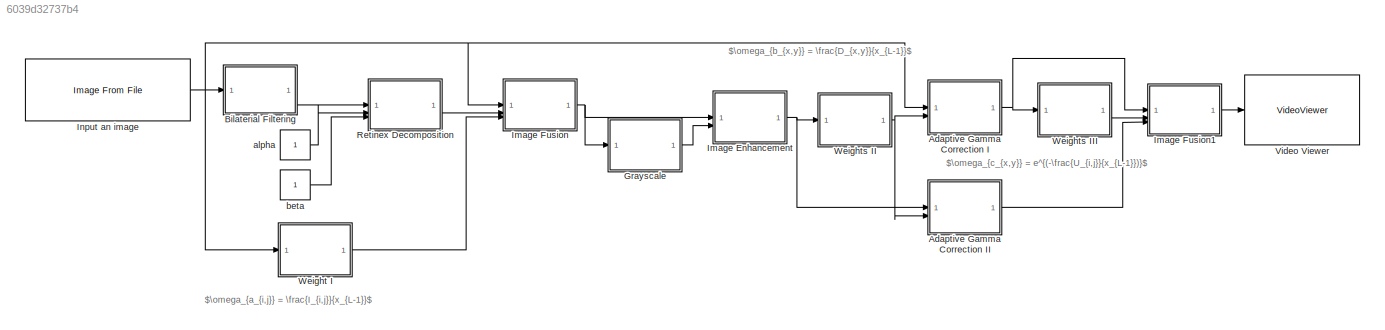
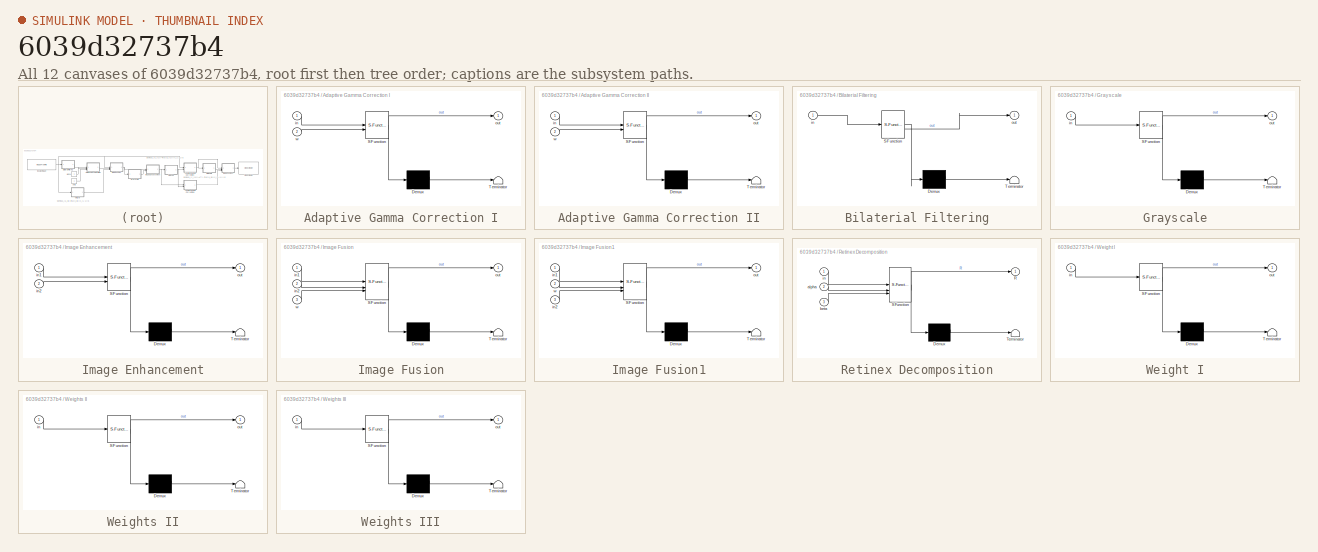
[diagram: thumbnail index - all 12 canvases of the model, root first then tree order]
MODEL slx_6039d32737b4
KIND model
CONFIG AbsTol = auto
CONFIG EnableMultiTasking = off
CONFIG FixedStep = auto
CONFIG MaxStep = auto
CONFIG MinStep = auto
CONFIG RelTol = 1e-3
CONFIG SampleTimeConstraint = Unconstrained
CONFIG SolverName = VariableStepAuto
CONFIG StartTime = 0.0
CONFIG StopTime = 10.0
BLOCK [SubSystem] Adaptive Gamma Correction I
  ErrorFcn = Stateflow.Translate.translate
  LibrarySourceBlock = simulink/User-Defined\nFunctions/MATLAB Function
  PermitHierarchicalResolution = ExplicitOnly
  SFBlockType = MATLAB Function
  TreatAsAtomicUnit = on
BLOCK [Demux] Adaptive Gamma Correction I/ Demux 
  Outputs = 1
BLOCK [S-Function] Adaptive Gamma Correction I/ SFunction 
  EnableBusSupport = off
  FunctionName = sf_sfun
  PortCounts = [2 2]
  SFcnIsStateOwnerBlock = off
  SFunctionDeploymentMode = off
  Tag = Stateflow S-Function 7
BLOCK [Terminator] Adaptive Gamma Correction I/ Terminator 
BLOCK [Inport] Adaptive Gamma Correction I/in
BLOCK [Outport] Adaptive Gamma Correction I/out
BLOCK [Inport] Adaptive Gamma Correction I/w
  Port = 2
BLOCK [SubSystem] Adaptive Gamma Correction II
  ErrorFcn = Stateflow.Translate.translate
  LibrarySourceBlock = simulink/User-Defined\nFunctions/MATLAB Function
  PermitHierarchicalResolution = ExplicitOnly
  SFBlockType = MATLAB Function
  TreatAsAtomicUnit = on
BLOCK [Demux] Adaptive Gamma Correction II/ Demux 
  Outputs = 1
BLOCK [S-Function] Adaptive Gamma Correction II/ SFunction 
  EnableBusSupport = off
  FunctionName = sf_sfun
  PortCounts = [2 2]
  SFcnIsStateOwnerBlock = off
  SFunctionDeploymentMode = off
  Tag = Stateflow S-Function 8
BLOCK [Terminator] Adaptive Gamma Correction II/ Terminator 
BLOCK [Inport] Adaptive Gamma Correction II/in
BLOCK [Outport] Adaptive Gamma Correction II/out
BLOCK [Inport] Adaptive Gamma Correction II/w
  Port = 2
BLOCK [SubSystem] Bilaterial Filtering
  ErrorFcn = Stateflow.Translate.translate
  LibrarySourceBlock = simulink/User-Defined\nFunctions/MATLAB Function
  PermitHierarchicalResolution = ExplicitOnly
  SFBlockType = MATLAB Function
  TreatAsAtomicUnit = on
BLOCK [Demux] Bilaterial Filtering/ Demux 
  Outputs = 1
BLOCK [S-Function] Bilaterial Filtering/ SFunction 
  EnableBusSupport = off
  FunctionName = sf_sfun
  PortCounts = [1 2]
  SFcnIsStateOwnerBlock = off
  SFunctionDeploymentMode = off
  Tag = Stateflow S-Function 1
BLOCK [Terminator] Bilaterial Filtering/ Terminator 
BLOCK [Inport] Bilaterial Filtering/in
BLOCK [Outport] Bilaterial Filtering/out
BLOCK [SubSystem] Grayscale
  ErrorFcn = Stateflow.Translate.translate
  LibrarySourceBlock = simulink/User-Defined\nFunctions/MATLAB Function
  PermitHierarchicalResolution = ExplicitOnly
  SFBlockType = MATLAB Function
  TreatAsAtomicUnit = on
BLOCK [Demux] Grayscale/ Demux 
  Outputs = 1
BLOCK [S-Function] Grayscale/ SFunction 
  EnableBusSupport = off
  FunctionName = sf_sfun
  PortCounts = [1 2]
  SFcnIsStateOwnerBlock = off
  SFunctionDeploymentMode = off
  Tag = Stateflow S-Function 6
BLOCK [Terminator] Grayscale/ Terminator 
BLOCK [Inport] Grayscale/in
BLOCK [Outport] Grayscale/out
BLOCK [SubSystem] Image Enhancement
  ErrorFcn = Stateflow.Translate.translate
  LibrarySourceBlock = simulink/User-Defined\nFunctions/MATLAB Function
  PermitHierarchicalResolution = ExplicitOnly
  SFBlockType = MATLAB Function
  TreatAsAtomicUnit = on
BLOCK [Demux] Image Enhancement/ Demux 
  Outputs = 1
BLOCK [S-Function] Image Enhancement/ SFunction 
  EnableBusSupport = off
  FunctionName = sf_sfun
  PortCounts = [2 2]
  SFcnIsStateOwnerBlock = off
  SFunctionDeploymentMode = off
  Tag = Stateflow S-Function 5
BLOCK [Terminator] Image Enhancement/ Terminator 
BLOCK [Inport] Image Enhancement/in1
BLOCK [Inport] Image Enhancement/in2
  Port = 2
BLOCK [Outport] Image Enhancement/out
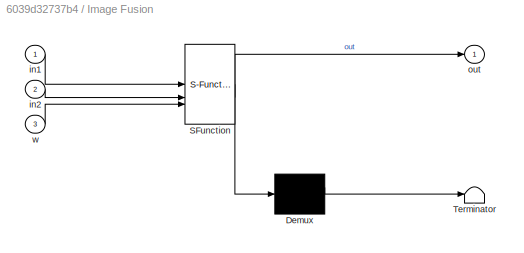
BLOCK [SubSystem] Image Fusion
  ErrorFcn = Stateflow.Translate.translate
  LibrarySourceBlock = simulink/User-Defined\nFunctions/MATLAB Function
  PermitHierarchicalResolution = ExplicitOnly
  SFBlockType = MATLAB Function
  TreatAsAtomicUnit = on
BLOCK [Demux] Image Fusion/ Demux 
  Outputs = 1
BLOCK [S-Function] Image Fusion/ SFunction 
  EnableBusSupport = off
  FunctionName = sf_sfun
  PortCounts = [3 2]
  SFcnIsStateOwnerBlock = off
  SFunctionDeploymentMode = off
  Tag = Stateflow S-Function 3
BLOCK [Terminator] Image Fusion/ Terminator 
BLOCK [Inport] Image Fusion/in1
BLOCK [Inport] Image Fusion/in2
  Port = 2
BLOCK [Outport] Image Fusion/out
BLOCK [Inport] Image Fusion/w
  Port = 3
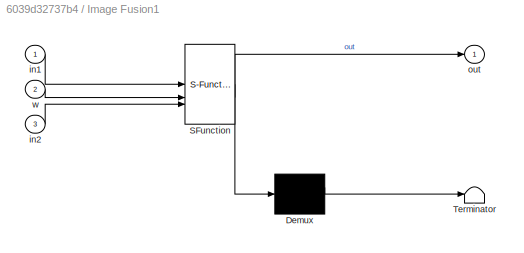
BLOCK [SubSystem] Image Fusion1
  ErrorFcn = Stateflow.Translate.translate
  LibrarySourceBlock = simulink/User-Defined\nFunctions/MATLAB Function
  PermitHierarchicalResolution = ExplicitOnly
  SFBlockType = MATLAB Function
  TreatAsAtomicUnit = on
BLOCK [Demux] Image Fusion1/ Demux 
  Outputs = 1
BLOCK [S-Function] Image Fusion1/ SFunction 
  EnableBusSupport = off
  FunctionName = sf_sfun
  PortCounts = [3 2]
  SFcnIsStateOwnerBlock = off
  SFunctionDeploymentMode = off
  Tag = Stateflow S-Function 9
BLOCK [Terminator] Image Fusion1/ Terminator 
BLOCK [Inport] Image Fusion1/in1
BLOCK [Inport] Image Fusion1/in2
  Port = 3
BLOCK [Outport] Image Fusion1/out
BLOCK [Inport] Image Fusion1/w
  Port = 2
BLOCK [Reference] Input an image  REF=visionsources/Image From File
  SourceBlock = visionsources/Image From File
  SourceType = Image From File
  Tag = vipblks_nd
BLOCK [SubSystem] Retinex Decomposition
  ErrorFcn = Stateflow.Translate.translate
  LibrarySourceBlock = simulink/User-Defined\nFunctions/MATLAB Function
  PermitHierarchicalResolution = ExplicitOnly
  SFBlockType = MATLAB Function
  TreatAsAtomicUnit = on
BLOCK [Demux] Retinex Decomposition/ Demux 
  Outputs = 1
BLOCK [S-Function] Retinex Decomposition/ SFunction 
  EnableBusSupport = off
  FunctionName = sf_sfun
  PortCounts = [3 2]
  SFcnIsStateOwnerBlock = off
  SFunctionDeploymentMode = off
  Tag = Stateflow S-Function 2
BLOCK [Terminator] Retinex Decomposition/ Terminator 
BLOCK [Outport] Retinex Decomposition/R
BLOCK [Inport] Retinex Decomposition/alpha
  Port = 2
BLOCK [Inport] Retinex Decomposition/beta
  Port = 3
BLOCK [Inport] Retinex Decomposition/in
BLOCK [VideoViewer] Video Viewer
  FigPos = [2041 741 418 304]
  ScopeSpecificationString = vipscopes.VideoViewerScopeCfg('CurrentConfiguration', extmgr.ConfigurationSet(extmgr.Configuration('Core','General UI',true),extmgr.Configuration('Core','Source UI',true),extmgr.Configuration('Sources','WiredSimulink',true),extmgr.Configuration('Visuals','Video',true),extmgr.Configuration('Tools','Image Navigation Tools',true),extmgr.Configuration('Tools','Image Tool',true),extmgr.Configuration('T...<+76ch>
BLOCK [SubSystem] Weight I
  ErrorFcn = Stateflow.Translate.translate
  LibrarySourceBlock = simulink/User-Defined\nFunctions/MATLAB Function
  PermitHierarchicalResolution = ExplicitOnly
  SFBlockType = MATLAB Function
  TreatAsAtomicUnit = on
BLOCK [Demux] Weight I/ Demux 
  Outputs = 1
BLOCK [S-Function] Weight I/ SFunction 
  EnableBusSupport = off
  FunctionName = sf_sfun
  PortCounts = [1 2]
  SFcnIsStateOwnerBlock = off
  SFunctionDeploymentMode = off
  Tag = Stateflow S-Function 4
BLOCK [Terminator] Weight I/ Terminator 
BLOCK [Inport] Weight I/in
BLOCK [Outport] Weight I/out
BLOCK [SubSystem] Weights II
  ErrorFcn = Stateflow.Translate.translate
  LibrarySourceBlock = simulink/User-Defined\nFunctions/MATLAB Function
  PermitHierarchicalResolution = ExplicitOnly
  SFBlockType = MATLAB Function
  TreatAsAtomicUnit = on
BLOCK [Demux] Weights II/ Demux 
  Outputs = 1
BLOCK [S-Function] Weights II/ SFunction 
  EnableBusSupport = off
  FunctionName = sf_sfun
  PortCounts = [1 2]
  SFcnIsStateOwnerBlock = off
  SFunctionDeploymentMode = off
  Tag = Stateflow S-Function 10
BLOCK [Terminator] Weights II/ Terminator 
BLOCK [Inport] Weights II/in
BLOCK [Outport] Weights II/out
BLOCK [SubSystem] Weights III
  ErrorFcn = Stateflow.Translate.translate
  LibrarySourceBlock = simulink/User-Defined\nFunctions/MATLAB Function
  PermitHierarchicalResolution = ExplicitOnly
  SFBlockType = MATLAB Function
  TreatAsAtomicUnit = on
BLOCK [Demux] Weights III/ Demux 
  Outputs = 1
BLOCK [S-Function] Weights III/ SFunction 
  EnableBusSupport = off
  FunctionName = sf_sfun
  PortCounts = [1 2]
  SFcnIsStateOwnerBlock = off
  SFunctionDeploymentMode = off
  Tag = Stateflow S-Function 11
BLOCK [Terminator] Weights III/ Terminator 
BLOCK [Inport] Weights III/in
BLOCK [Outport] Weights III/out
BLOCK [Constant] alpha
BLOCK [Constant] beta
ANNOTATION (root): $\omega_{a_{i,j}} = \frac{I_{i,j}}{x_{L-1}}$
ANNOTATION (root): $\omega_{b_{x,y}} = \frac{D_{x,y}}{x_{L-1}}$
ANNOTATION (root): $\omega_{c_{x,y}} = e^{(-\frac{U_{i,j}}{x_{L-1}})}$
NET Adaptive Gamma Correction I:1 -> Image Fusion1:1, Weights III:1
LINE Adaptive Gamma Correction II:1 -> Image Fusion1:3
LINE Bilaterial Filtering:1 -> Retinex Decomposition:1
LINE Grayscale:1 -> Image Enhancement:2
NET Image Enhancement:1 -> Adaptive Gamma Correction II:1, Weights II:1
LINE Image Fusion1:1 -> Video Viewer:1
NET Image Fusion:1 -> Grayscale:1, Image Enhancement:1
NET Input an image:1 -> Adaptive Gamma Correction I:1, Bilaterial Filtering:1, Image Fusion:1, Weight I:1
LINE Retinex Decomposition:1 -> Image Fusion:2
LINE Weight I:1 -> Image Fusion:3
NET Weights II:1 -> Adaptive Gamma Correction I:2, Adaptive Gamma Correction II:2
LINE Weights III:1 -> Image Fusion1:2
LINE alpha:1 -> Retinex Decomposition:2
LINE beta:1 -> Retinex Decomposition:3
note: NET lines group one-source signal fan-out (src -> all destinations, sorted); 1:1 wires keep LINE
CHART Bilaterial Filtering states=1 transitions=1
  STATE_LABEL 'eML_blk_kernel()'
  STATE_LABEL 'SCRIPT:\nfunction out = fcn(in)\n\nout = in;\n'
CHART Retinex Decomposition states=1 transitions=1
  STATE_LABEL 'eML_blk_kernel()'
  STATE_LABEL 'SCRIPT:\nfunction R  = fcn(in,alpha,beta)\n\nR = in;\n\n'
CHART Image Fusion states=1 transitions=1
  STATE_LABEL 'eML_blk_kernel()'
  STATE_LABEL 'SCRIPT:\nfunction out  = fcn(in1,in2,w)\n\nout = w * in1 + (1 - w) + in2;'
CHART Weight I states=1 transitions=1
  STATE_LABEL 'eML_blk_kernel()'
  STATE_LABEL 'SCRIPT:\nfunction out  = fcn(in)\n\nout = in;'
CHART Image Enhancement states=1 transitions=1
  STATE_LABEL 'eML_blk_kernel()'
  STATE_LABEL 'SCRIPT:\nfunction out  = fcn(in1,in2)\n\nout =in1 + in2;'
CHART Grayscale states=1 transitions=1
  STATE_LABEL 'eML_blk_kernel()'
  STATE_LABEL 'SCRIPT:\nfunction out  = fcn(in)\n\nout = in;'
CHART Adaptive Gamma Correction I states=1 transitions=1
  STATE_LABEL 'eML_blk_kernel()'
  STATE_LABEL 'SCRIPT:\nfunction out  = fcn(in,w)\n\nout = w*in1 + in2;'
CHART Adaptive Gamma Correction II states=1 transitions=1
  STATE_LABEL 'eML_blk_kernel()'
  STATE_LABEL 'SCRIPT:\nfunction out  = fcn(in,w)\n\nout = w*in1 + in2;'
CHART Image Fusion1 states=1 transitions=1
  STATE_LABEL 'eML_blk_kernel()'
  STATE_LABEL 'SCRIPT:\nfunction out  = fcn(in1,w,in2)\n\nout = w * in1 + (1 - w) + in2;'
CHART Weights II states=1 transitions=1
  STATE_LABEL 'eML_blk_kernel()'
  STATE_LABEL 'SCRIPT:\nfunction out  = fcn(in)\n\nout = in;'
CHART Weights III states=1 transitions=1
  STATE_LABEL 'eML_blk_kernel()'
  STATE_LABEL 'SCRIPT:\nfunction out  = fcn(in)\n\nout = in;'
CHART  states=0 transitions=0
CHART  states=0 transitions=0
CHART  states=0 transitions=0
CHART  states=0 transitions=0
CHART  states=0 transitions=0
CHART  states=0 transitions=0
CHART  states=0 transitions=0
CHART  states=0 transitions=0
CHART  states=0 transitions=0
CHART  states=0 transitions=0
CHART  states=0 transitions=0
